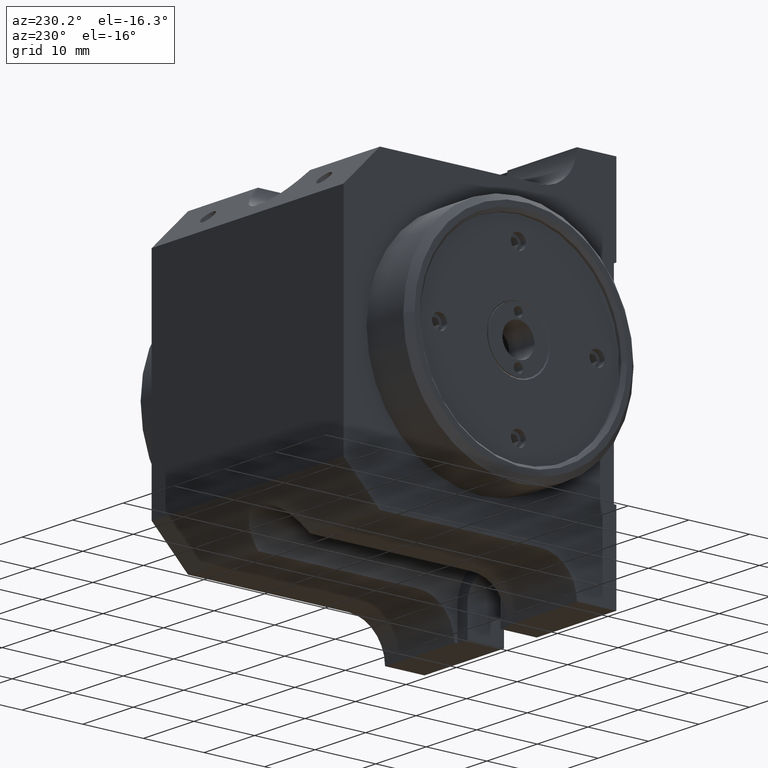
[diagram: clean part render]
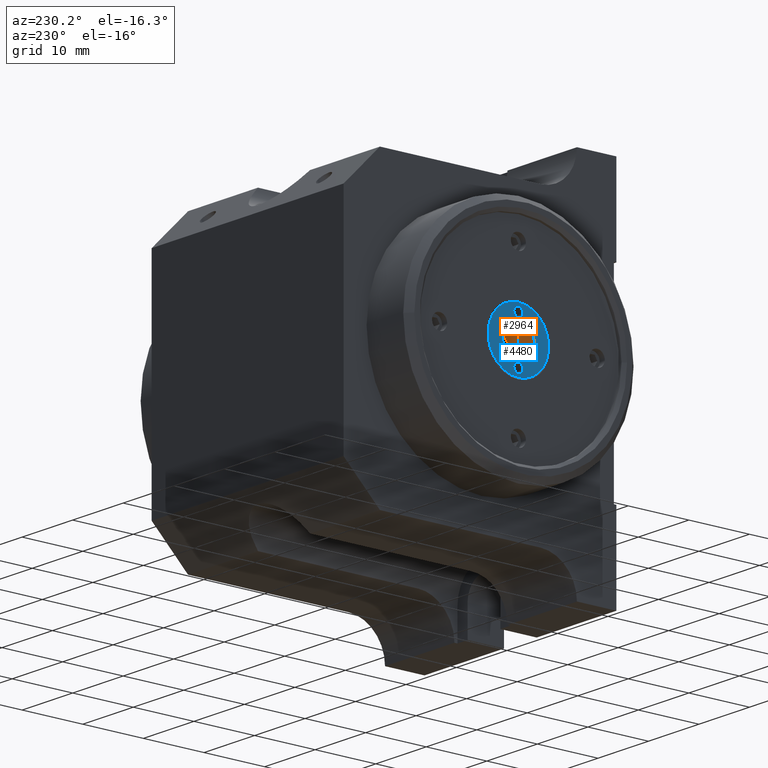
[diagram: same view with the hole feature highlighted: cylindrical wall and planar end face, labeled with their STEP entity ids]
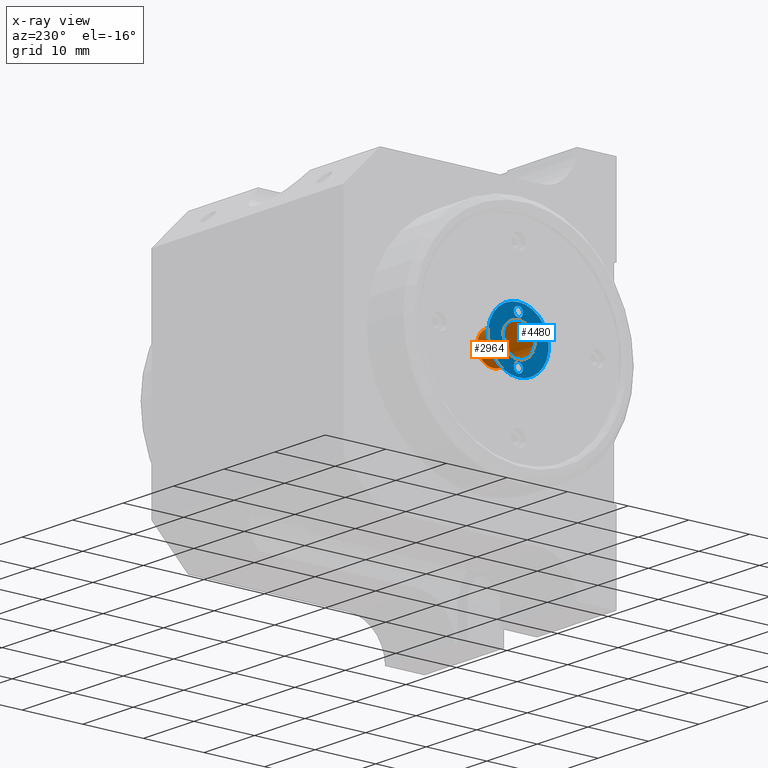
[diagram: x-ray of the same camera — body ghosted, the hole faces saturated]
A machine part, auxiliary view. The highlighted faces form one hole feature of diameter 5.3 mm: the cylindrical wall (entity #2964, orange) and its adjacent planar end face (entity #4480, blue) — they share a circular edge in the B-rep.
The next image is the same camera in x-ray (body ghosted, the hole faces saturated) — the bore reads through the body.
Wall:
#59 = DIRECTION ( 'NONE',  ( 1.000000000000000000, -0.000000000000000000, -0.000000000000000000 ) ) ;
#168 = VERTEX_POINT ( 'NONE', #3251 ) ;
#302 = VERTEX_POINT ( 'NONE', #1346 ) ;
#306 = EDGE_LOOP ( 'NONE', ( #757 ) ) ;
#757 = ORIENTED_EDGE ( 'NONE', *, *, #4226, .F. ) ;
#1168 = FACE_OUTER_BOUND ( 'NONE', #306, .T. ) ;
#1346 = CARTESIAN_POINT ( 'NONE',  ( -21.25000000000000000, 0.000000000000000000, 2.649999999999999911 ) ) ;
#1570 = EDGE_CURVE ( 'NONE', #302, #302, #2162, .T. ) ;
#1867 = DIRECTION ( 'NONE',  ( 0.000000000000000000, 0.000000000000000000, 1.000000000000000000 ) ) ;
#2054 = AXIS2_PLACEMENT_3D ( 'NONE', #4474, #3434, #1867 ) ;
#2104 = DIRECTION ( 'NONE',  ( 0.000000000000000000, 0.000000000000000000, 1.000000000000000000 ) ) ;
#2162 = CIRCLE ( 'NONE', #2054, 2.649999999999999911 ) ;
#2179 = DIRECTION ( 'NONE',  ( -1.000000000000000000, 0.000000000000000000, 0.000000000000000000 ) ) ;
#2777 = ORIENTED_EDGE ( 'NONE', *, *, #1570, .T. ) ;
#2964 = ADVANCED_FACE ( 'NONE', ( #1168, #5730 ), #3636, .F. ) ;
#3049 = CIRCLE ( 'NONE', #6152, 2.649999999999999911 ) ;
#3251 = CARTESIAN_POINT ( 'NONE',  ( -26.25000000000000000, 0.000000000000000000, 2.649999999999999911 ) ) ;
#3434 = DIRECTION ( 'NONE',  ( 1.000000000000000000, -0.000000000000000000, -0.000000000000000000 ) ) ;
#3636 = CYLINDRICAL_SURFACE ( 'NONE', #5499, 2.649999999999999911 ) ;
#3705 = DIRECTION ( 'NONE',  ( 0.000000000000000000, 0.000000000000000000, 1.000000000000000000 ) ) ;
#4226 = EDGE_CURVE ( 'NONE', #168, #168, #3049, .T. ) ;
#4373 = EDGE_LOOP ( 'NONE', ( #2777 ) ) ;
#4474 = CARTESIAN_POINT ( 'NONE',  ( -21.25000000000000000, 0.000000000000000000, 0.000000000000000000 ) ) ;
#4612 = CARTESIAN_POINT ( 'NONE',  ( -26.25000000000000000, 0.000000000000000000, 0.000000000000000000 ) ) ;
#5255 = CARTESIAN_POINT ( 'NONE',  ( -21.25000000000000000, 0.000000000000000000, 0.000000000000000000 ) ) ;
#5499 = AXIS2_PLACEMENT_3D ( 'NONE', #5255, #2179, #3705 ) ;
#5730 = FACE_OUTER_BOUND ( 'NONE', #4373, .T. ) ;
#6152 = AXIS2_PLACEMENT_3D ( 'NONE', #4612, #59, #2104 ) ;
End face:
#59 = DIRECTION ( 'NONE',  ( 1.000000000000000000, -0.000000000000000000, -0.000000000000000000 ) ) ;
#168 = VERTEX_POINT ( 'NONE', #3251 ) ;
#433 = ORIENTED_EDGE ( 'NONE', *, *, #1018, .T. ) ;
#503 = CARTESIAN_POINT ( 'NONE',  ( -26.25000000000000000, 0.000000000000000000, 5.000000000000000000 ) ) ;
#743 = DIRECTION ( 'NONE',  ( 0.000000000000000000, 0.000000000000000000, 1.000000000000000000 ) ) ;
#779 = PLANE ( 'NONE',  #3476 ) ;
#1018 = EDGE_CURVE ( 'NONE', #2849, #2849, #4179, .T. ) ;
#1254 = FACE_OUTER_BOUND ( 'NONE', #1442, .T. ) ;
#1323 = AXIS2_PLACEMENT_3D ( 'NONE', #5224, #5193, #1571 ) ;
#1382 = CARTESIAN_POINT ( 'NONE',  ( -26.25000000000000000, 0.000000000000000000, 3.700000000000000178 ) ) ;
#1442 = EDGE_LOOP ( 'NONE', ( #2896 ) ) ;
#1480 = VERTEX_POINT ( 'NONE', #3981 ) ;
#1571 = DIRECTION ( 'NONE',  ( 0.000000000000000000, 0.000000000000000000, 1.000000000000000000 ) ) ;
#2072 = CIRCLE ( 'NONE', #1323, 5.000000000000000000 ) ;
#2104 = DIRECTION ( 'NONE',  ( 0.000000000000000000, 0.000000000000000000, 1.000000000000000000 ) ) ;
#2220 = EDGE_LOOP ( 'NONE', ( #3821 ) ) ;
#2235 = EDGE_CURVE ( 'NONE', #1480, #1480, #5166, .T. ) ;
#2516 = VERTEX_POINT ( 'NONE', #503 ) ;
#2598 = AXIS2_PLACEMENT_3D ( 'NONE', #1382, #2737, #3421 ) ;
#2737 = DIRECTION ( 'NONE',  ( 1.000000000000000000, -0.000000000000000000, -0.000000000000000000 ) ) ;
#2849 = VERTEX_POINT ( 'NONE', #6484 ) ;
#2896 = ORIENTED_EDGE ( 'NONE', *, *, #2897, .T. ) ;
#2897 = EDGE_CURVE ( 'NONE', #2516, #2516, #2072, .T. ) ;
#3049 = CIRCLE ( 'NONE', #6152, 2.649999999999999911 ) ;
#3251 = CARTESIAN_POINT ( 'NONE',  ( -26.25000000000000000, 0.000000000000000000, 2.649999999999999911 ) ) ;
#3357 = FACE_BOUND ( 'NONE', #2220, .T. ) ;
#3421 = DIRECTION ( 'NONE',  ( 0.000000000000000000, 0.000000000000000000, 1.000000000000000000 ) ) ;
#3476 = AXIS2_PLACEMENT_3D ( 'NONE', #5336, #5404, #743 ) ;
#3529 = EDGE_LOOP ( 'NONE', ( #433 ) ) ;
#3788 = FACE_BOUND ( 'NONE', #3529, .T. ) ;
#3821 = ORIENTED_EDGE ( 'NONE', *, *, #2235, .T. ) ;
#3981 = CARTESIAN_POINT ( 'NONE',  ( -26.25000000000000000, 0.000000000000000000, 4.450000000000000178 ) ) ;
#4179 = CIRCLE ( 'NONE', #5798, 0.7499999999999997780 ) ;
#4226 = EDGE_CURVE ( 'NONE', #168, #168, #3049, .T. ) ;
#4370 = EDGE_LOOP ( 'NONE', ( #6521 ) ) ;
#4480 = ADVANCED_FACE ( 'NONE', ( #3357, #3788, #5846, #1254 ), #779, .T. ) ;
#4612 = CARTESIAN_POINT ( 'NONE',  ( -26.25000000000000000, 0.000000000000000000, 0.000000000000000000 ) ) ;
#4632 = CARTESIAN_POINT ( 'NONE',  ( -26.25000000000000000, 0.000000000000000000, -3.700000000000000178 ) ) ;
#4732 = DIRECTION ( 'NONE',  ( 0.000000000000000000, 0.000000000000000000, 1.000000000000000000 ) ) ;
#5166 = CIRCLE ( 'NONE', #2598, 0.7499999999999997780 ) ;
#5193 = DIRECTION ( 'NONE',  ( -1.000000000000000000, 0.000000000000000000, 0.000000000000000000 ) ) ;
#5224 = CARTESIAN_POINT ( 'NONE',  ( -26.25000000000000000, 0.000000000000000000, 0.000000000000000000 ) ) ;
#5336 = CARTESIAN_POINT ( 'NONE',  ( -26.25000000000000000, 0.000000000000000000, 0.000000000000000000 ) ) ;
#5404 = DIRECTION ( 'NONE',  ( -1.000000000000000000, 0.000000000000000000, 0.000000000000000000 ) ) ;
#5708 = DIRECTION ( 'NONE',  ( 1.000000000000000000, -0.000000000000000000, -0.000000000000000000 ) ) ;
#5798 = AXIS2_PLACEMENT_3D ( 'NONE', #4632, #5708, #4732 ) ;
#5846 = FACE_BOUND ( 'NONE', #4370, .T. ) ;
#6152 = AXIS2_PLACEMENT_3D ( 'NONE', #4612, #59, #2104 ) ;
#6484 = CARTESIAN_POINT ( 'NONE',  ( -26.25000000000000000, 0.000000000000000000, -2.950000000000000178 ) ) ;
#6521 = ORIENTED_EDGE ( 'NONE', *, *, #4226, .T. ) ;